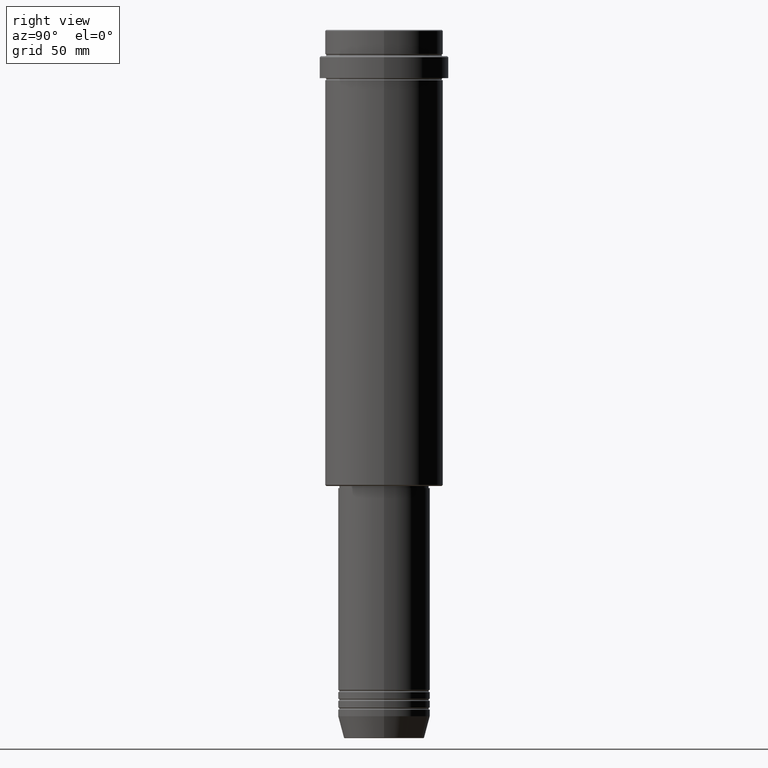
[diagram: clean part render]
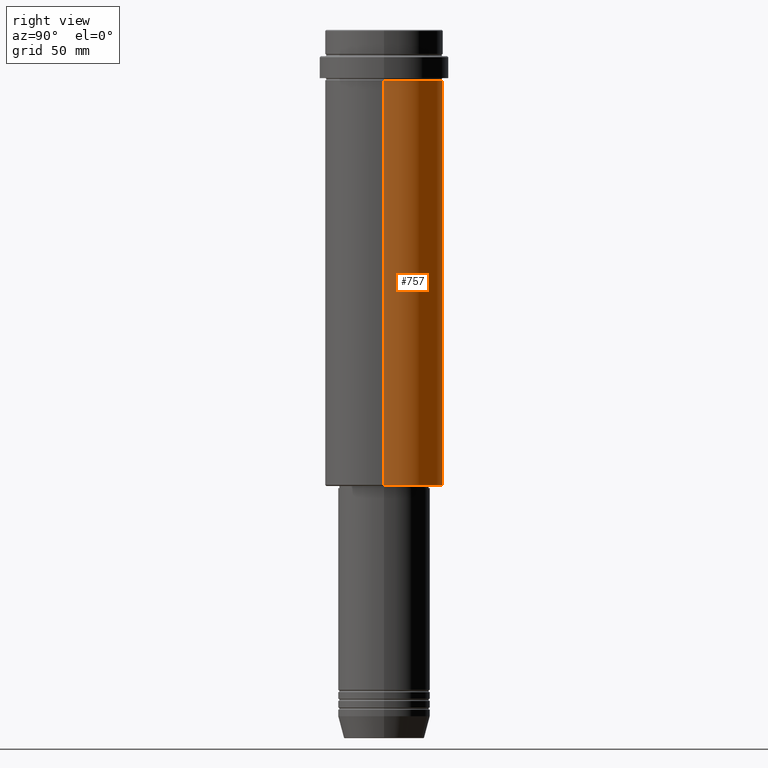
[diagram: same view with one face highlighted and labeled with its STEP entity id]
A machine part, right view. The second image highlights one B-rep face of the part: STEP entity #757.
In plain terms, the highlighted cylindrical surface (partial cylindrical patch) has radius 27 mm, axis along (-0, -0, 1).
Its self-contained STEP definition (entity closure, byte-faithful):
#37 = VERTEX_POINT ( 'NONE', #1289 ) ;
#89 = CYLINDRICAL_SURFACE ( 'NONE', #427, 27.00000000000000355 ) ;
#161 = CARTESIAN_POINT ( 'NONE',  ( 27.00000000000000355, 0.000000000000000000, -207.4999999999999716 ) ) ;
#173 = EDGE_LOOP ( 'NONE', ( #424, #257, #1374, #1145 ) ) ;
#212 = DIRECTION ( 'NONE',  ( -1.000000000000000000, 0.000000000000000000, 0.000000000000000000 ) ) ;
#227 = CIRCLE ( 'NONE', #1169, 27.00000000000000355 ) ;
#232 = EDGE_CURVE ( 'NONE', #909, #37, #450, .T. ) ;
#257 = ORIENTED_EDGE ( 'NONE', *, *, #232, .T. ) ;
#297 = DIRECTION ( 'NONE',  ( -0.000000000000000000, -0.000000000000000000, 1.000000000000000000 ) ) ;
#321 = CARTESIAN_POINT ( 'NONE',  ( -27.00000000000000355, 3.306546357697854128E-15, 0.000000000000000000 ) ) ;
#325 = CARTESIAN_POINT ( 'NONE',  ( 0.000000000000000000, 0.000000000000000000, -207.4999999999999716 ) ) ;
#401 = EDGE_CURVE ( 'NONE', #1378, #909, #227, .T. ) ;
#407 = LINE ( 'NONE', #733, #954 ) ;
#424 = ORIENTED_EDGE ( 'NONE', *, *, #401, .T. ) ;
#427 = AXIS2_PLACEMENT_3D ( 'NONE', #958, #1163, #854 ) ;
#450 = LINE ( 'NONE', #321, #533 ) ;
#499 = EDGE_CURVE ( 'NONE', #848, #37, #1056, .T. ) ;
#533 = VECTOR ( 'NONE', #1319, 1000.000000000000000 ) ;
#591 = DIRECTION ( 'NONE',  ( -0.000000000000000000, -0.000000000000000000, 1.000000000000000000 ) ) ;
#619 = AXIS2_PLACEMENT_3D ( 'NONE', #724, #591, #1165 ) ;
#695 = CARTESIAN_POINT ( 'NONE',  ( -27.00000000000000355, 3.306546357697854128E-15, -207.4999999999999716 ) ) ;
#724 = CARTESIAN_POINT ( 'NONE',  ( 0.000000000000000000, 0.000000000000000000, -23.00000000000001421 ) ) ;
#733 = CARTESIAN_POINT ( 'NONE',  ( 27.00000000000000355, 0.000000000000000000, 0.000000000000000000 ) ) ;
#757 = ADVANCED_FACE ( 'NONE', ( #1126 ), #89, .T. ) ;
#848 = VERTEX_POINT ( 'NONE', #1023 ) ;
#854 = DIRECTION ( 'NONE',  ( 1.000000000000000000, 0.000000000000000000, 0.000000000000000000 ) ) ;
#909 = VERTEX_POINT ( 'NONE', #695 ) ;
#954 = VECTOR ( 'NONE', #297, 1000.000000000000000 ) ;
#958 = CARTESIAN_POINT ( 'NONE',  ( 0.000000000000000000, 0.000000000000000000, 0.000000000000000000 ) ) ;
#962 = DIRECTION ( 'NONE',  ( -0.000000000000000000, -0.000000000000000000, 1.000000000000000000 ) ) ;
#1023 = CARTESIAN_POINT ( 'NONE',  ( 27.00000000000000355, 0.000000000000000000, -23.00000000000001421 ) ) ;
#1056 = CIRCLE ( 'NONE', #619, 27.00000000000000355 ) ;
#1126 = FACE_OUTER_BOUND ( 'NONE', #173, .T. ) ;
#1145 = ORIENTED_EDGE ( 'NONE', *, *, #1333, .F. ) ;
#1163 = DIRECTION ( 'NONE',  ( -0.000000000000000000, -0.000000000000000000, 1.000000000000000000 ) ) ;
#1165 = DIRECTION ( 'NONE',  ( 1.000000000000000000, 0.000000000000000000, 0.000000000000000000 ) ) ;
#1169 = AXIS2_PLACEMENT_3D ( 'NONE', #325, #962, #212 ) ;
#1289 = CARTESIAN_POINT ( 'NONE',  ( -27.00000000000000355, 3.306546357697854128E-15, -23.00000000000001421 ) ) ;
#1319 = DIRECTION ( 'NONE',  ( -0.000000000000000000, -0.000000000000000000, 1.000000000000000000 ) ) ;
#1333 = EDGE_CURVE ( 'NONE', #1378, #848, #407, .T. ) ;
#1374 = ORIENTED_EDGE ( 'NONE', *, *, #499, .F. ) ;
#1378 = VERTEX_POINT ( 'NONE', #161 ) ;